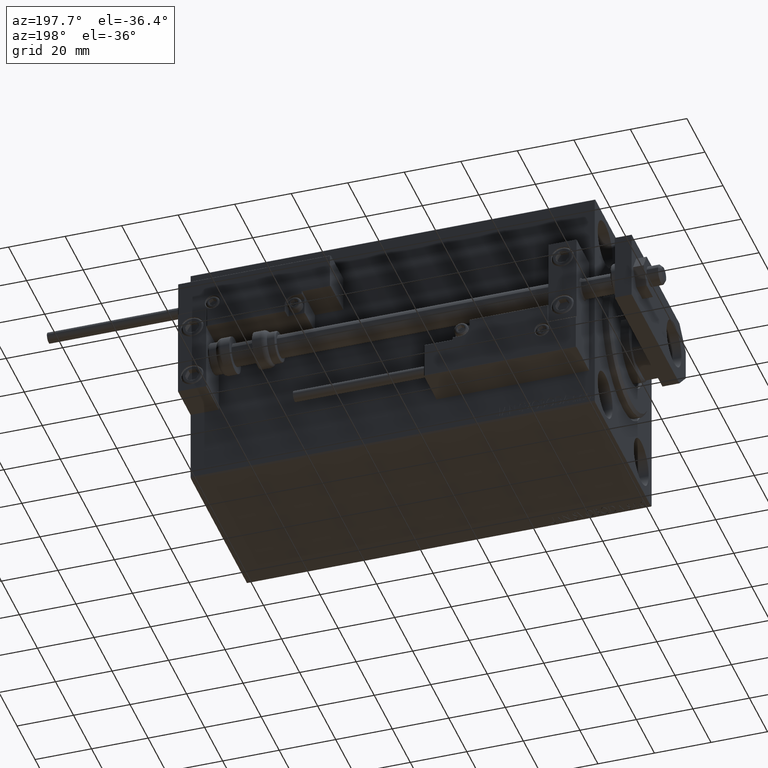
[diagram: clean part render]
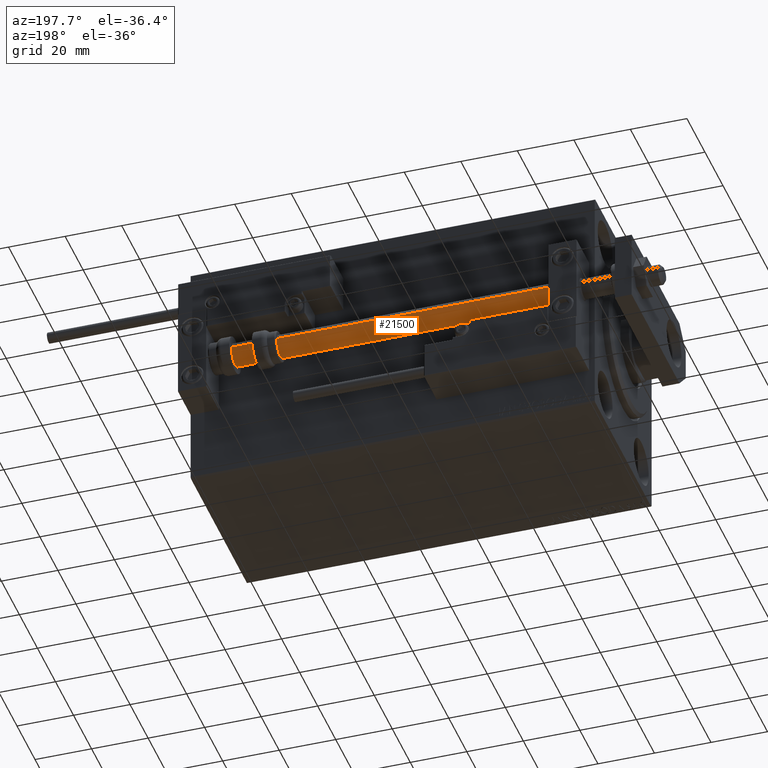
[diagram: same view with one face highlighted and labeled with its STEP entity id]
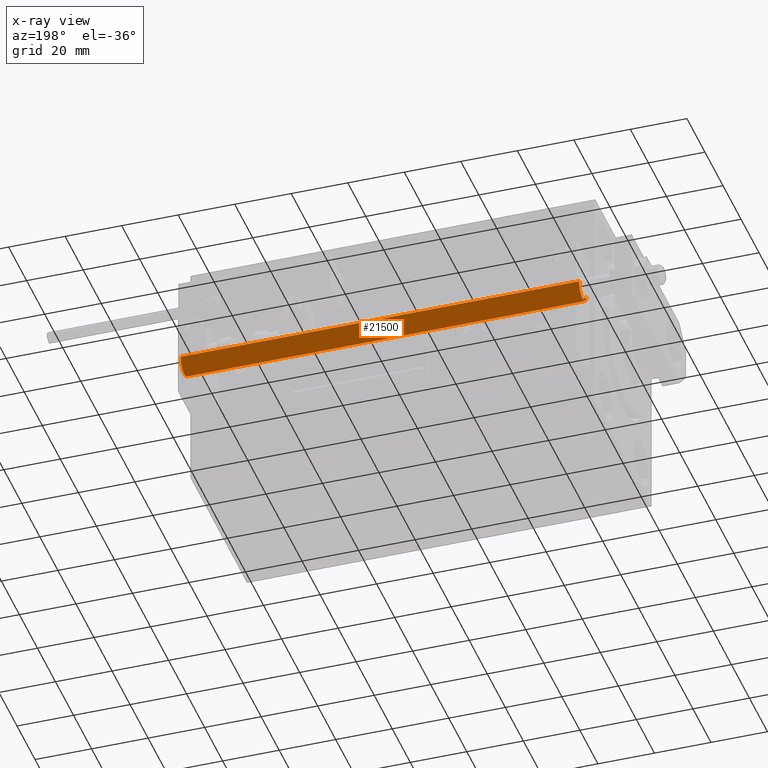
[diagram: x-ray of the same camera — body ghosted, the highlighted face saturated]
A machine part, auxiliary view. The second image highlights one B-rep face of the part: STEP entity #21500.
The next image is the same camera in x-ray: the body ghosted, the highlighted face saturated — about 0% of this face is hidden behind the body in this view.
In plain terms, the highlighted cylindrical surface (edge-blend (fillet) strip) has radius 4 mm, axis along (-1, 0, 0).
Its self-contained STEP definition (entity closure, byte-faithful):
#802 = CIRCLE ( 'NONE', #29109, 4.000000000000000000 ) ;
#1789 = LINE ( 'NONE', #17244, #3136 ) ;
#2187 = DIRECTION ( 'NONE',  ( 0.000000000000000000, 0.000000000000000000, 1.000000000000000000 ) ) ;
#2793 = VERTEX_POINT ( 'NONE', #24414 ) ;
#3136 = VECTOR ( 'NONE', #48111, 1000.000000000000000 ) ;
#5213 = DIRECTION ( 'NONE',  ( -0.000000000000000000, -0.000000000000000000, -1.000000000000000000 ) ) ;
#9294 = VERTEX_POINT ( 'NONE', #25783 ) ;
#10892 = EDGE_CURVE ( 'NONE', #27813, #28563, #42253, .T. ) ;
#11788 = DIRECTION ( 'NONE',  ( 1.000000000000000000, 0.000000000000000000, 0.000000000000000000 ) ) ;
#13237 = ORIENTED_EDGE ( 'NONE', *, *, #10892, .T. ) ;
#13526 = CARTESIAN_POINT ( 'NONE',  ( 4.000000000000000000, 4.898587196589412829E-16, 2.000000000000029310 ) ) ;
#17244 = CARTESIAN_POINT ( 'NONE',  ( 4.000000000000000000, 4.898587196589412829E-16, 143.0000000000000000 ) ) ;
#17550 = CARTESIAN_POINT ( 'NONE',  ( 0.000000000000000000, 0.000000000000000000, 143.0000000000000000 ) ) ;
#17614 = LINE ( 'NONE', #20391, #22528 ) ;
#18806 = AXIS2_PLACEMENT_3D ( 'NONE', #46709, #30519, #11788 ) ;
#20391 = CARTESIAN_POINT ( 'NONE',  ( -4.000000000000000000, 0.000000000000000000, 143.0000000000000000 ) ) ;
#21275 = EDGE_LOOP ( 'NONE', ( #31126, #33925, #47234, #13237 ) ) ;
#21500 = ADVANCED_FACE ( 'NONE', ( #43859 ), #36522, .T. ) ;
#22528 = VECTOR ( 'NONE', #5213, 1000.000000000000000 ) ;
#22989 = EDGE_CURVE ( 'NONE', #2793, #28563, #1789, .T. ) ;
#24414 = CARTESIAN_POINT ( 'NONE',  ( 4.000000000000000000, 4.898587196589412829E-16, 143.0000000000000000 ) ) ;
#24877 = DIRECTION ( 'NONE',  ( -0.000000000000000000, -0.000000000000000000, -1.000000000000000000 ) ) ;
#25715 = CARTESIAN_POINT ( 'NONE',  ( 0.000000000000000000, 0.000000000000000000, 143.0000000000000000 ) ) ;
#25783 = CARTESIAN_POINT ( 'NONE',  ( -4.000000000000000000, 0.000000000000000000, 143.0000000000000000 ) ) ;
#26344 = EDGE_CURVE ( 'NONE', #9294, #27813, #17614, .T. ) ;
#27813 = VERTEX_POINT ( 'NONE', #44825 ) ;
#28563 = VERTEX_POINT ( 'NONE', #13526 ) ;
#29010 = DIRECTION ( 'NONE',  ( 1.000000000000000000, 0.000000000000000000, 0.000000000000000000 ) ) ;
#29109 = AXIS2_PLACEMENT_3D ( 'NONE', #25715, #2187, #29010 ) ;
#29887 = EDGE_CURVE ( 'NONE', #9294, #2793, #802, .T. ) ;
#30519 = DIRECTION ( 'NONE',  ( -0.000000000000000000, -0.000000000000000000, 1.000000000000000000 ) ) ;
#31126 = ORIENTED_EDGE ( 'NONE', *, *, #22989, .F. ) ;
#33925 = ORIENTED_EDGE ( 'NONE', *, *, #29887, .F. ) ;
#36026 = DIRECTION ( 'NONE',  ( -1.000000000000000000, 0.000000000000000000, 0.000000000000000000 ) ) ;
#36522 = CYLINDRICAL_SURFACE ( 'NONE', #45131, 4.000000000000000000 ) ;
#42253 = CIRCLE ( 'NONE', #18806, 4.000000000000000000 ) ;
#43859 = FACE_OUTER_BOUND ( 'NONE', #21275, .T. ) ;
#44825 = CARTESIAN_POINT ( 'NONE',  ( -4.000000000000000000, 0.000000000000000000, 2.000000000000029310 ) ) ;
#45131 = AXIS2_PLACEMENT_3D ( 'NONE', #17550, #24877, #36026 ) ;
#46709 = CARTESIAN_POINT ( 'NONE',  ( 0.000000000000000000, 0.000000000000000000, 2.000000000000029310 ) ) ;
#47234 = ORIENTED_EDGE ( 'NONE', *, *, #26344, .T. ) ;
#48111 = DIRECTION ( 'NONE',  ( -0.000000000000000000, -0.000000000000000000, -1.000000000000000000 ) ) ;